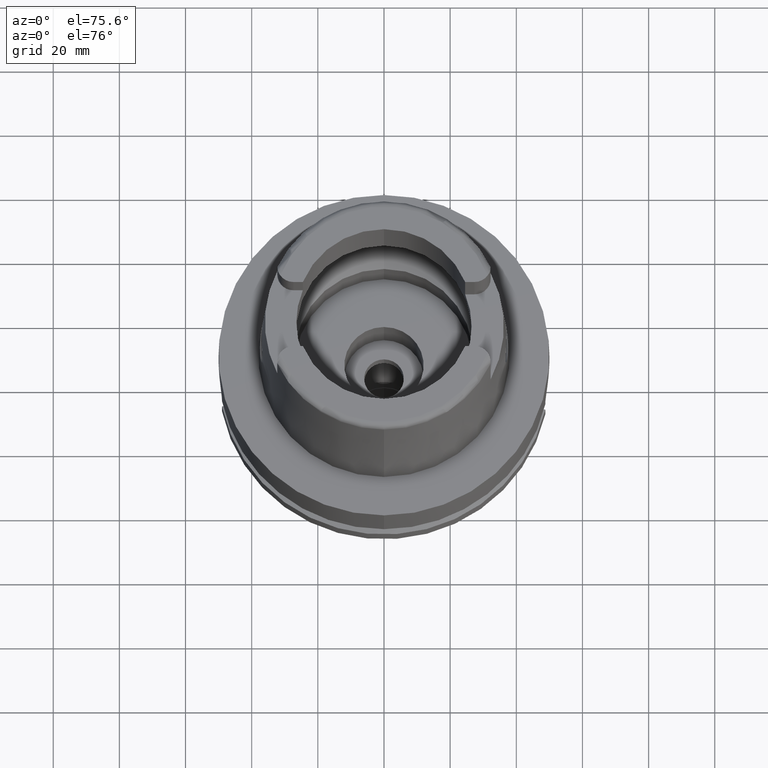
[diagram: clean part render]
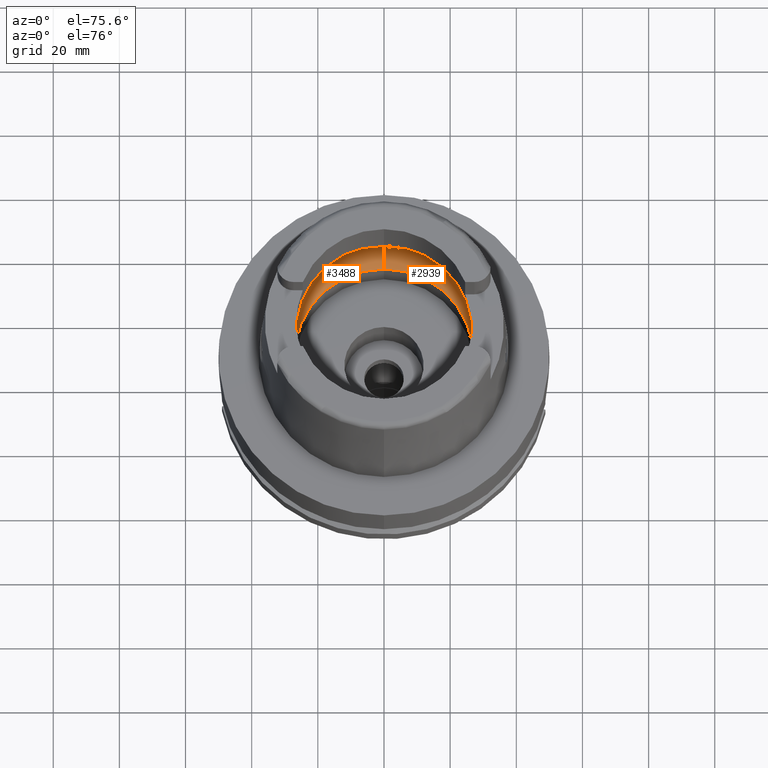
[diagram: same view with one multi-face feature highlighted, each face labeled with its STEP entity id]
A machine part, auxiliary view. The highlighted faces form ONE feature: a constant-radius fillet chain: 2 tangent blend faces with common blend radius 12 mm. The faces share edges in the B-rep.
Their STEP definitions:
[1] entity #2939 (Torus):
#346 = CARTESIAN_POINT ( 'NONE',  ( 31.46287568614665986, 1.684656700008886121, 9.190219625026216477 ) ) ;
#430 = DIRECTION ( 'NONE',  ( 0.0000000000000000000, 0.0000000000000000000, -1.000000000000000000 ) ) ;
#454 = ORIENTED_EDGE ( 'NONE', *, *, #2576, .F. ) ;
#607 = CARTESIAN_POINT ( 'NONE',  ( 31.46287568614665986, -1.684656699965325632, 9.190219625007294724 ) ) ;
#701 = CARTESIAN_POINT ( 'NONE',  ( 31.40918884336000616, -2.390158196043999705, 9.496624327025999790 ) ) ;
#708 = AXIS2_PLACEMENT_3D ( 'NONE', #6006, #4304, #2429 ) ;
#755 = B_SPLINE_CURVE_WITH_KNOTS ( 'NONE', 3,
 ( #2929, #3936, #607, #701 ),
 .UNSPECIFIED., .F., .F.,
 ( 4, 4 ),
 ( 0.0000000000000000000, 1.000000000000000000 ),
 .UNSPECIFIED. ) ;
#763 = ORIENTED_EDGE ( 'NONE', *, *, #5618, .T. ) ;
#915 = DIRECTION ( 'NONE',  ( 0.0000000000000000000, 0.6166666666667049990, -0.7872243785746061429 ) ) ;
#1058 = EDGE_CURVE ( 'NONE', #4214, #1589, #1295, .T. ) ;
#1172 = DIRECTION ( 'NONE',  ( 0.9971171061384295209, -0.07587803796965221503, 0.0000000000000000000 ) ) ;
#1295 = CIRCLE ( 'NONE', #5994, 11.99999999999999822 ) ;
#1340 = DIRECTION ( 'NONE',  ( -1.000000000000000000, 0.0000000000000000000, 0.0000000000000000000 ) ) ;
#1459 = AXIS2_PLACEMENT_3D ( 'NONE', #5303, #3499, #1172 ) ;
#1568 = AXIS2_PLACEMENT_3D ( 'NONE', #2694, #1340, #6047 ) ;
#1581 = CARTESIAN_POINT ( 'NONE',  ( 0.0000000000000000000, 26.89999999999999858, 0.04993178413025000512 ) ) ;
#1589 = VERTEX_POINT ( 'NONE', #1769 ) ;
#1670 = ORIENTED_EDGE ( 'NONE', *, *, #4534, .F. ) ;
#1769 = CARTESIAN_POINT ( 'NONE',  ( 0.0000000000000000000, 31.50000000000000000, 9.496624327025999790 ) ) ;
#1795 = VERTEX_POINT ( 'NONE', #4320 ) ;
#2271 = DIRECTION ( 'NONE',  ( 0.0000000000000000000, 1.000000000000000000, 0.0000000000000000000 ) ) ;
#2429 = DIRECTION ( 'NONE',  ( 0.0000000000000000000, -1.000000000000000000, 0.0000000000000000000 ) ) ;
#2515 = VERTEX_POINT ( 'NONE', #2704 ) ;
#2519 = ORIENTED_EDGE ( 'NONE', *, *, #4984, .F. ) ;
#2576 = EDGE_CURVE ( 'NONE', #5537, #4214, #3457, .T. ) ;
#2595 = DIRECTION ( 'NONE',  ( 0.0000000000000000000, 0.0000000000000000000, 1.000000000000000000 ) ) ;
#2694 = CARTESIAN_POINT ( 'NONE',  ( 0.0000000000000000000, -19.50000000000000000, 9.496624327025999790 ) ) ;
#2698 = CARTESIAN_POINT ( 'NONE',  ( 0.0000000000000000000, 0.0000000000000000000, 9.496624327025999790 ) ) ;
#2704 = CARTESIAN_POINT ( 'NONE',  ( 31.40918884336000616, -2.390158196043999705, 9.496624327025999790 ) ) ;
#2859 = VERTEX_POINT ( 'NONE', #3050 ) ;
#2929 = CARTESIAN_POINT ( 'NONE',  ( 31.48971910754000447, 0.0000000000000000000, 9.000000000000000000 ) ) ;
#2939 = ADVANCED_FACE ( 'NONE', ( #4512 ), #4239, .F. ) ;
#2990 = DIRECTION ( 'NONE',  ( 0.0000000000000000000, 1.000000000000000000, 0.0000000000000000000 ) ) ;
#3050 = CARTESIAN_POINT ( 'NONE',  ( 31.40918884336000616, 2.390158196043999705, 9.496624327025999790 ) ) ;
#3226 = CIRCLE ( 'NONE', #4397, 31.50000000000000000 ) ;
#3457 = CIRCLE ( 'NONE', #708, 26.89999999999999858 ) ;
#3499 = DIRECTION ( 'NONE',  ( 0.0000000000000000000, 0.0000000000000000000, -1.000000000000000000 ) ) ;
#3601 = CARTESIAN_POINT ( 'NONE',  ( 0.0000000000000000000, -26.89999999999999858, 0.04993178413026000406 ) ) ;
#3606 = ORIENTED_EDGE ( 'NONE', *, *, #1058, .F. ) ;
#3628 = B_SPLINE_CURVE_WITH_KNOTS ( 'NONE', 3,
 ( #4127, #346, #4607, #5997 ),
 .UNSPECIFIED., .F., .F.,
 ( 4, 4 ),
 ( 0.0000000000000000000, 1.000000000000000000 ),
 .UNSPECIFIED. ) ;
#3800 = DIRECTION ( 'NONE',  ( 1.000000000000000000, 0.0000000000000000000, 0.0000000000000000000 ) ) ;
#3872 = VERTEX_POINT ( 'NONE', #5499 ) ;
#3936 = CARTESIAN_POINT ( 'NONE',  ( 31.48971910753999026, -0.8697454017312684638, 8.999999999999998224 ) ) ;
#3980 = ORIENTED_EDGE ( 'NONE', *, *, #4673, .F. ) ;
#4127 = CARTESIAN_POINT ( 'NONE',  ( 31.40918884336000616, 2.390158196043999705, 9.496624327025999790 ) ) ;
#4214 = VERTEX_POINT ( 'NONE', #1581 ) ;
#4239 = TOROIDAL_SURFACE ( 'NONE', #4333, 19.50000000000000000, 12.00000000000000000 ) ;
#4273 = EDGE_LOOP ( 'NONE', ( #2519, #5985, #3606, #454, #763, #3980, #1670 ) ) ;
#4304 = DIRECTION ( 'NONE',  ( 0.0000000000000000000, 0.0000000000000000000, 1.000000000000000000 ) ) ;
#4320 = CARTESIAN_POINT ( 'NONE',  ( 0.0000000000000000000, -31.50000000000000000, 9.496624327025999790 ) ) ;
#4333 = AXIS2_PLACEMENT_3D ( 'NONE', #5339, #2595, #2990 ) ;
#4397 = AXIS2_PLACEMENT_3D ( 'NONE', #2698, #430, #2271 ) ;
#4512 = FACE_OUTER_BOUND ( 'NONE', #4273, .T. ) ;
#4534 = EDGE_CURVE ( 'NONE', #3872, #2515, #755, .T. ) ;
#4607 = CARTESIAN_POINT ( 'NONE',  ( 31.48971910753999026, 0.8697454017787721314, 9.000000000000001776 ) ) ;
#4673 = EDGE_CURVE ( 'NONE', #2515, #1795, #5466, .T. ) ;
#4687 = CIRCLE ( 'NONE', #1568, 11.99999999999999822 ) ;
#4947 = EDGE_CURVE ( 'NONE', #1589, #2859, #3226, .T. ) ;
#4984 = EDGE_CURVE ( 'NONE', #2859, #3872, #3628, .T. ) ;
#5233 = CARTESIAN_POINT ( 'NONE',  ( 0.0000000000000000000, 19.50000000000000000, 9.496624327025999790 ) ) ;
#5303 = CARTESIAN_POINT ( 'NONE',  ( 0.0000000000000000000, 0.0000000000000000000, 9.496624327025999790 ) ) ;
#5339 = CARTESIAN_POINT ( 'NONE',  ( 0.0000000000000000000, 0.0000000000000000000, 9.496624327025999790 ) ) ;
#5466 = CIRCLE ( 'NONE', #1459, 31.49999999999998934 ) ;
#5499 = CARTESIAN_POINT ( 'NONE',  ( 31.48971910754000447, 0.0000000000000000000, 9.000000000000000000 ) ) ;
#5537 = VERTEX_POINT ( 'NONE', #3601 ) ;
#5618 = EDGE_CURVE ( 'NONE', #5537, #1795, #4687, .T. ) ;
#5985 = ORIENTED_EDGE ( 'NONE', *, *, #4947, .F. ) ;
#5994 = AXIS2_PLACEMENT_3D ( 'NONE', #5233, #3800, #915 ) ;
#5997 = CARTESIAN_POINT ( 'NONE',  ( 31.48971910754000447, 0.0000000000000000000, 9.000000000000000000 ) ) ;
#6006 = CARTESIAN_POINT ( 'NONE',  ( 0.0000000000000000000, 0.0000000000000000000, 0.04993178413025000512 ) ) ;
#6047 = DIRECTION ( 'NONE',  ( 0.0000000000000000000, -0.6166666666667049990, -0.7872243785746061429 ) ) ;
[2] entity #3488 (Torus):
#63 = EDGE_LOOP ( 'NONE', ( #5681, #4437, #3365, #762, #1345, #2167, #5078 ) ) ;
#102 = CIRCLE ( 'NONE', #893, 26.89999999999999858 ) ;
#458 = B_SPLINE_CURVE_WITH_KNOTS ( 'NONE', 3,
 ( #3383, #5179, #1048, #2930 ),
 .UNSPECIFIED., .F., .F.,
 ( 4, 4 ),
 ( 0.0000000000000000000, 1.000000000000000000 ),
 .UNSPECIFIED. ) ;
#480 = CARTESIAN_POINT ( 'NONE',  ( -31.46287568614665986, 1.684656699916923683, 9.190219624986275093 ) ) ;
#586 = VERTEX_POINT ( 'NONE', #2807 ) ;
#719 = EDGE_CURVE ( 'NONE', #1795, #3044, #5892, .T. ) ;
#762 = ORIENTED_EDGE ( 'NONE', *, *, #1058, .T. ) ;
#893 = AXIS2_PLACEMENT_3D ( 'NONE', #5552, #3264, #2690 ) ;
#915 = DIRECTION ( 'NONE',  ( 0.0000000000000000000, 0.6166666666667049990, -0.7872243785746061429 ) ) ;
#1048 = CARTESIAN_POINT ( 'NONE',  ( -31.48971910754000447, -0.8697454017997489073, 8.999999999999998224 ) ) ;
#1058 = EDGE_CURVE ( 'NONE', #4214, #1589, #1295, .T. ) ;
#1216 = AXIS2_PLACEMENT_3D ( 'NONE', #5422, #4957, #5510 ) ;
#1264 = FACE_OUTER_BOUND ( 'NONE', #63, .T. ) ;
#1295 = CIRCLE ( 'NONE', #5994, 11.99999999999999822 ) ;
#1297 = CARTESIAN_POINT ( 'NONE',  ( 0.0000000000000000000, 0.0000000000000000000, 9.496624327025999790 ) ) ;
#1340 = DIRECTION ( 'NONE',  ( -1.000000000000000000, 0.0000000000000000000, 0.0000000000000000000 ) ) ;
#1345 = ORIENTED_EDGE ( 'NONE', *, *, #2534, .F. ) ;
#1407 = TOROIDAL_SURFACE ( 'NONE', #3850, 19.50000000000000000, 12.00000000000000000 ) ;
#1568 = AXIS2_PLACEMENT_3D ( 'NONE', #2694, #1340, #6047 ) ;
#1581 = CARTESIAN_POINT ( 'NONE',  ( 0.0000000000000000000, 26.89999999999999858, 0.04993178413025000512 ) ) ;
#1589 = VERTEX_POINT ( 'NONE', #1769 ) ;
#1631 = EDGE_CURVE ( 'NONE', #4214, #5537, #102, .T. ) ;
#1711 = EDGE_CURVE ( 'NONE', #2829, #586, #5893, .T. ) ;
#1769 = CARTESIAN_POINT ( 'NONE',  ( 0.0000000000000000000, 31.50000000000000000, 9.496624327025999790 ) ) ;
#1770 = DIRECTION ( 'NONE',  ( 0.0000000000000000000, 0.0000000000000000000, -1.000000000000000000 ) ) ;
#1795 = VERTEX_POINT ( 'NONE', #4320 ) ;
#2167 = ORIENTED_EDGE ( 'NONE', *, *, #1711, .F. ) ;
#2323 = CARTESIAN_POINT ( 'NONE',  ( 0.0000000000000000000, 0.0000000000000000000, 9.496624327025999790 ) ) ;
#2534 = EDGE_CURVE ( 'NONE', #586, #1589, #5604, .T. ) ;
#2653 = CARTESIAN_POINT ( 'NONE',  ( -31.40918884336000616, -2.390158196043999705, 9.496624327025999790 ) ) ;
#2690 = DIRECTION ( 'NONE',  ( 0.0000000000000000000, 1.000000000000000000, 0.0000000000000000000 ) ) ;
#2694 = CARTESIAN_POINT ( 'NONE',  ( 0.0000000000000000000, -19.50000000000000000, 9.496624327025999790 ) ) ;
#2765 = DIRECTION ( 'NONE',  ( 0.0000000000000000000, 1.000000000000000000, 0.0000000000000000000 ) ) ;
#2807 = CARTESIAN_POINT ( 'NONE',  ( -31.40918884336000616, 2.390158196043999705, 9.496624327025999790 ) ) ;
#2824 = EDGE_CURVE ( 'NONE', #3044, #2829, #458, .T. ) ;
#2829 = VERTEX_POINT ( 'NONE', #4780 ) ;
#2930 = CARTESIAN_POINT ( 'NONE',  ( -31.48971910754000447, 0.0000000000000000000, 9.000000000000000000 ) ) ;
#3044 = VERTEX_POINT ( 'NONE', #2653 ) ;
#3264 = DIRECTION ( 'NONE',  ( 0.0000000000000000000, 0.0000000000000000000, 1.000000000000000000 ) ) ;
#3365 = ORIENTED_EDGE ( 'NONE', *, *, #1631, .F. ) ;
#3383 = CARTESIAN_POINT ( 'NONE',  ( -31.40918884336000616, -2.390158196043999705, 9.496624327025999790 ) ) ;
#3440 = AXIS2_PLACEMENT_3D ( 'NONE', #2323, #1770, #5055 ) ;
#3488 = ADVANCED_FACE ( 'NONE', ( #1264 ), #1407, .F. ) ;
#3601 = CARTESIAN_POINT ( 'NONE',  ( 0.0000000000000000000, -26.89999999999999858, 0.04993178413026000406 ) ) ;
#3744 = CARTESIAN_POINT ( 'NONE',  ( -31.48971910754000447, 0.8697454016785111097, 9.000000000000001776 ) ) ;
#3800 = DIRECTION ( 'NONE',  ( 1.000000000000000000, 0.0000000000000000000, 0.0000000000000000000 ) ) ;
#3850 = AXIS2_PLACEMENT_3D ( 'NONE', #1297, #5429, #2765 ) ;
#4214 = VERTEX_POINT ( 'NONE', #1581 ) ;
#4320 = CARTESIAN_POINT ( 'NONE',  ( 0.0000000000000000000, -31.50000000000000000, 9.496624327025999790 ) ) ;
#4437 = ORIENTED_EDGE ( 'NONE', *, *, #5618, .F. ) ;
#4687 = CIRCLE ( 'NONE', #1568, 11.99999999999999822 ) ;
#4780 = CARTESIAN_POINT ( 'NONE',  ( -31.48971910754000447, 0.0000000000000000000, 9.000000000000000000 ) ) ;
#4957 = DIRECTION ( 'NONE',  ( 0.0000000000000000000, 0.0000000000000000000, -1.000000000000000000 ) ) ;
#5055 = DIRECTION ( 'NONE',  ( 0.0000000000000000000, -1.000000000000000000, 0.0000000000000000000 ) ) ;
#5078 = ORIENTED_EDGE ( 'NONE', *, *, #2824, .F. ) ;
#5179 = CARTESIAN_POINT ( 'NONE',  ( -31.46287568614665986, -1.684656700028137832, 9.190219625034576012 ) ) ;
#5233 = CARTESIAN_POINT ( 'NONE',  ( 0.0000000000000000000, 19.50000000000000000, 9.496624327025999790 ) ) ;
#5239 = CARTESIAN_POINT ( 'NONE',  ( -31.40918884336000616, 2.390158196043999705, 9.496624327025999790 ) ) ;
#5422 = CARTESIAN_POINT ( 'NONE',  ( 0.0000000000000000000, 0.0000000000000000000, 9.496624327025999790 ) ) ;
#5429 = DIRECTION ( 'NONE',  ( 0.0000000000000000000, 0.0000000000000000000, 1.000000000000000000 ) ) ;
#5510 = DIRECTION ( 'NONE',  ( -0.9971171061384295209, 0.07587803796965221503, 0.0000000000000000000 ) ) ;
#5537 = VERTEX_POINT ( 'NONE', #3601 ) ;
#5552 = CARTESIAN_POINT ( 'NONE',  ( 0.0000000000000000000, 0.0000000000000000000, 0.04993178413026000406 ) ) ;
#5604 = CIRCLE ( 'NONE', #1216, 31.49999999999998934 ) ;
#5618 = EDGE_CURVE ( 'NONE', #5537, #1795, #4687, .T. ) ;
#5669 = CARTESIAN_POINT ( 'NONE',  ( -31.48971910754000447, 0.0000000000000000000, 9.000000000000000000 ) ) ;
#5681 = ORIENTED_EDGE ( 'NONE', *, *, #719, .F. ) ;
#5892 = CIRCLE ( 'NONE', #3440, 31.50000000000000000 ) ;
#5893 = B_SPLINE_CURVE_WITH_KNOTS ( 'NONE', 3,
 ( #5669, #3744, #480, #5239 ),
 .UNSPECIFIED., .F., .F.,
 ( 4, 4 ),
 ( 0.0000000000000000000, 1.000000000000000000 ),
 .UNSPECIFIED. ) ;
#5994 = AXIS2_PLACEMENT_3D ( 'NONE', #5233, #3800, #915 ) ;
#6047 = DIRECTION ( 'NONE',  ( 0.0000000000000000000, -0.6166666666667049990, -0.7872243785746061429 ) ) ;